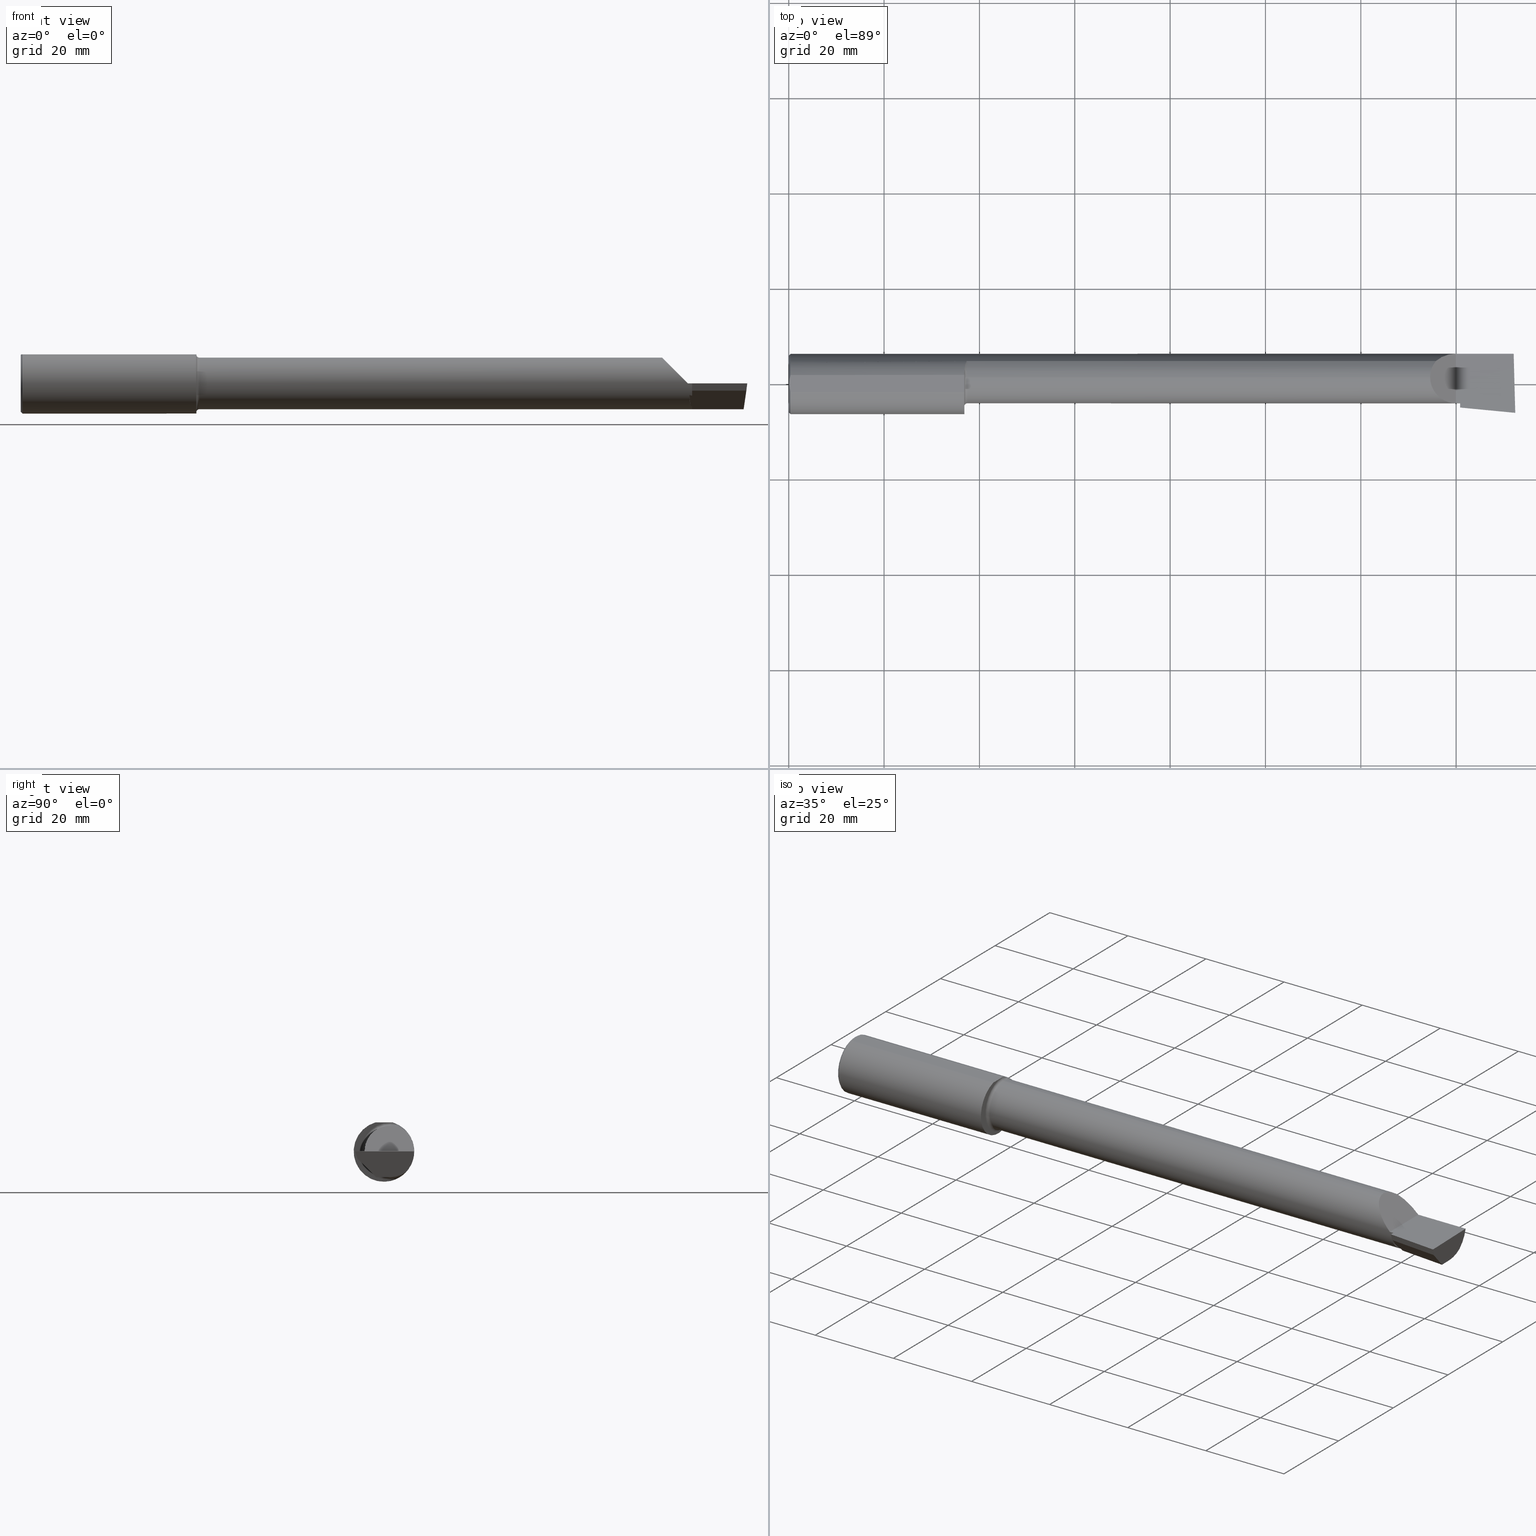
[diagram: canonical four-view strip — front | top / right | iso, engineering-drawing reading convention]
A machine part, canonical four-view strip (front | top / right | iso — engineering-drawing reading convention). The complete STEP part file that produces these views, byte-faithful:
ISO-10303-21;
HEADER;
FILE_DESCRIPTION (( 'STEP AP203' ),
    '1' );
FILE_NAME ('212172-LHB4904500.STEP',
    '2024-08-27T21:29:48',
    ( '' ),
    ( '' ),
    'SwSTEP 2.0',
    'SolidWorks 2024',
    '' );
FILE_SCHEMA (( 'CONFIG_CONTROL_DESIGN' ));
ENDSEC;

DATA;
#1 = CARTESIAN_POINT ( 'NONE',  ( 5.344079160038587517, 0.1868028301886762721, 0.1659208399614119367 ) ) ;
#2 = TOROIDAL_SURFACE ( 'NONE', #63, 0.2381500000000005002, 0.02499999999999993894 ) ;
#3 = ORIENTED_EDGE ( 'NONE', *, *, #547, .T. ) ;
#4 = AXIS2_PLACEMENT_3D ( 'NONE', #417, #405, #480 ) ;
#5 = ORIENTED_EDGE ( 'NONE', *, *, #326, .T. ) ;
#6 = DIRECTION ( 'NONE',  ( 0.000000000000000000, 0.000000000000000000, 1.000000000000000000 ) ) ;
#7 = EDGE_LOOP ( 'NONE', ( #683, #415, #5, #105 ) ) ;
#8 = EDGE_CURVE ( 'NONE', #594, #219, #279, .T. ) ;
#9 = ORIENTED_EDGE ( 'NONE', *, *, #551, .F. ) ;
#10 = COORDINATED_UNIVERSAL_TIME_OFFSET ( 8, 0, .BEHIND. ) ;
#11 = DIRECTION ( 'NONE',  ( 0.000000000000000000, 0.000000000000000000, -1.000000000000000000 ) ) ;
#12 = PLANE ( 'NONE',  #749 ) ;
#13 = EDGE_LOOP ( 'NONE', ( #643, #529 ) ) ;
#14 = LINE ( 'NONE', #159, #235 ) ;
#15 = VECTOR ( 'NONE', #47, 39.37007874015748143 ) ;
#16 = APPROVAL_PERSON_ORGANIZATION ( #56, #731, #227 ) ;
#17 = DIRECTION ( 'NONE',  ( 0.000000000000000000, -0.7025528302622682242, 0.7116315905652844664 ) ) ;
#18 = PRODUCT_RELATED_PRODUCT_CATEGORY ( 'detail', '', ( #758 ) ) ;
#19 = EDGE_CURVE ( 'NONE', #177, #350, #317, .T. ) ;
#20 = VERTEX_POINT ( 'NONE', #751 ) ;
#21 = FACE_OUTER_BOUND ( 'NONE', #565, .T. ) ;
#22 = FACE_OUTER_BOUND ( 'NONE', #607, .T. ) ;
#23 = CARTESIAN_POINT ( 'NONE',  ( 5.510000000000000675, -0.1601500000000002644, -1.849216666712503932E-16 ) ) ;
#24 = CARTESIAN_POINT ( 'NONE',  ( 1.475000000000000533, 0.05300000000000001238, -0.2381500000000005002 ) ) ;
#25 = AXIS2_PLACEMENT_3D ( 'NONE', #725, #422, #309 ) ;
#26 = CARTESIAN_POINT ( 'NONE',  ( 5.970126340504450013, -0.06507190623553234243, -0.2131499999999999506 ) ) ;
#27 = SHAPE_DEFINITION_REPRESENTATION ( #706, #452 ) ;
#28 = DIRECTION ( 'NONE',  ( 1.000000000000000000, 0.000000000000000000, 0.000000000000000000 ) ) ;
#29 = ADVANCED_FACE ( 'NONE', ( #222 ), #275, .F. ) ;
#30 = LINE ( 'NONE', #136, #590 ) ;
#31 = SECURITY_CLASSIFICATION_LEVEL ( 'unclassified' ) ;
#32 = ORIENTED_EDGE ( 'NONE', *, *, #160, .F. ) ;
#33 = CARTESIAN_POINT ( 'NONE',  ( 1.469285582744839669, 0.1841881072713785483, -0.1688230283719376612 ) ) ;
#34 = CARTESIAN_POINT ( 'NONE',  ( 5.968970726278977956, 0.1868028301886783815, -0.1659208399614098550 ) ) ;
#35 = ADVANCED_FACE ( 'NONE', ( #693 ), #346, .T. ) ;
#36 = VECTOR ( 'NONE', #727, 39.37007874015748143 ) ;
#37 = CARTESIAN_POINT ( 'NONE',  ( 5.540481425188587217, -0.04977693083852387235, -0.1867379188486353037 ) ) ;
#38 = ORIENTED_EDGE ( 'NONE', *, *, #470, .F. ) ;
#39 = AXIS2_PLACEMENT_3D ( 'NONE', #156, #50, #276 ) ;
#40 = APPROVAL_PERSON_ORGANIZATION ( #489, #142, #501 ) ;
#41 = CARTESIAN_POINT ( 'NONE',  ( 5.966986964385321279, 0.05211560253549542970, -0.2131499999999999784 ) ) ;
#42 = EDGE_CURVE ( 'NONE', #392, #170, #724, .T. ) ;
#43 = DIRECTION ( 'NONE',  ( 0.000000000000000000, -1.138839417068644240E-16, -1.000000000000000000 ) ) ;
#44 = ORIENTED_EDGE ( 'NONE', *, *, #481, .T. ) ;
#45 =( BOUNDED_CURVE ( )  B_SPLINE_CURVE ( 3, ( #640, #288, #528, #759 ),
 .UNSPECIFIED., .F., .T. ) 
 B_SPLINE_CURVE_WITH_KNOTS ( ( 4, 4 ),
 ( 0.8445312661599968518, 1.570796326794897002 ),
 .UNSPECIFIED. ) 
 CURVE ( )  GEOMETRIC_REPRESENTATION_ITEM ( )  RATIONAL_B_SPLINE_CURVE ( ( 1.000000000000000000, 0.9565258159410975347, 0.9565258159410975347, 1.000000000000000000 ) ) 
 REPRESENTATION_ITEM ( '' )  );
#46 = LINE ( 'NONE', #269, #340 ) ;
#47 = DIRECTION ( 'NONE',  ( 0.000000000000000000, -0.7025528302622682242, 0.7116315905652844664 ) ) ;
#48 = VERTEX_POINT ( 'NONE', #283 ) ;
#49 = LINE ( 'NONE', #148, #702 ) ;
#50 = DIRECTION ( 'NONE',  ( -1.000000000000000000, 0.000000000000000000, -0.000000000000000000 ) ) ;
#51 = EDGE_LOOP ( 'NONE', ( #296, #216, #318, #468, #169, #113 ) ) ;
#52 = VECTOR ( 'NONE', #523, 39.37007874015748143 ) ;
#53 = CARTESIAN_POINT ( 'NONE',  ( 0.004999999999999696527, 5.665694225652706815E-17, 0.2398500000000000076 ) ) ;
#54 = DIRECTION ( 'NONE',  ( 0.000000000000000000, 0.000000000000000000, 1.000000000000000000 ) ) ;
#55 = ORIENTED_EDGE ( 'NONE', *, *, #409, .T. ) ;
#56 = PERSON_AND_ORGANIZATION ( #273, #507 ) ;
#57 = FACE_OUTER_BOUND ( 'NONE', #180, .T. ) ;
#58 = EDGE_LOOP ( 'NONE', ( #290, #754, #400, #645, #366, #545 ) ) ;
#59 = ORIENTED_EDGE ( 'NONE', *, *, #421, .T. ) ;
#60 = EDGE_CURVE ( 'NONE', #85, #549, #162, .T. ) ;
#61 = CARTESIAN_POINT ( 'NONE',  ( 0.000000000000000000, 0.05299999999999998462, 0.000000000000000000 ) ) ;
#62 = APPLICATION_PROTOCOL_DEFINITION ( 'international standard', 'config_control_design', 1994, #424 ) ;
#63 = AXIS2_PLACEMENT_3D ( 'NONE', #678, #239, #141 ) ;
#64 = ADVANCED_FACE ( 'NONE', ( #484 ), #303, .F. ) ;
#65 = ORIENTED_EDGE ( 'NONE', *, *, #625, .T. ) ;
#66 = ORIENTED_EDGE ( 'NONE', *, *, #110, .F. ) ;
#67 = DIRECTION ( 'NONE',  ( 0.9927123040216839778, 0.02659410830638207074, -0.1175373763844857200 ) ) ;
#68 = ORIENTED_EDGE ( 'NONE', *, *, #187, .T. ) ;
#69 = CARTESIAN_POINT ( 'NONE',  ( 5.522499172395929357, -0.1369718963205484863, -0.09666230448512427853 ) ) ;
#70 = CYLINDRICAL_SURFACE ( 'NONE', #615, 0.2131500000000002282 ) ;
#71 = ADVANCED_FACE ( 'NONE', ( #22 ), #132, .F. ) ;
#72 = LINE ( 'NONE', #581, #437 ) ;
#73 = AXIS2_PLACEMENT_3D ( 'NONE', #135, #550, #663 ) ;
#74 = AXIS2_PLACEMENT_3D ( 'NONE', #355, #6, #291 ) ;
#75 = DIRECTION ( 'NONE',  ( 0.09140971883575738088, 0.9493262270931224212, 0.3007057995042750620 ) ) ;
#76 = EDGE_LOOP ( 'NONE', ( #635, #713, #641, #107 ) ) ;
#77 = DIRECTION ( 'NONE',  ( 1.000000000000000000, 0.000000000000000000, 0.000000000000000000 ) ) ;
#78 = DIRECTION ( 'NONE',  ( 0.000000000000000000, -1.000000000000000000, 0.000000000000000000 ) ) ;
#79 = CARTESIAN_POINT ( 'NONE',  ( 5.966963271960172399, 0.05299999999999996381, -0.2131499999999999784 ) ) ;
#80 = EDGE_CURVE ( 'NONE', #549, #161, #315, .T. ) ;
#81 = CARTESIAN_POINT ( 'NONE',  ( 0.004999999999999696527, 5.665694225652706815E-17, 0.2398500000000000076 ) ) ;
#82 = APPROVAL_STATUS ( 'not_yet_approved' ) ;
#83 = FACE_OUTER_BOUND ( 'NONE', #697, .T. ) ;
#84 = CARTESIAN_POINT ( 'NONE',  ( 1.450000000000000622, 0.08036415094339396936, 0.2365726648265757681 ) ) ;
#85 = VERTEX_POINT ( 'NONE', #26 ) ;
#86 = DIRECTION ( 'NONE',  ( -0.06717917588521546413, -0.6976824170844042605, 0.7132504491541850067 ) ) ;
#87 = CARTESIAN_POINT ( 'NONE',  ( 0.000000000000000000, 0.05299999999999998462, 0.000000000000000000 ) ) ;
#88 = DIRECTION ( 'NONE',  ( -0.09584575252022363434, -0.9953961983671787417, 0.000000000000000000 ) ) ;
#89 = EDGE_CURVE ( 'NONE', #429, #444, #293, .T. ) ;
#90 = DIRECTION ( 'NONE',  ( -1.000000000000000000, -0.000000000000000000, -0.000000000000000000 ) ) ;
#91 = CC_DESIGN_APPROVAL ( #420, ( #606 ) ) ;
#92 = CARTESIAN_POINT ( 'NONE',  ( 0.000000000000000000, 2.967931517733608178E-17, 0.2348499999999996424 ) ) ;
#93 = PLANE ( 'NONE',  #278 ) ;
#94 = CARTESIAN_POINT ( 'NONE',  ( 0.01180609504125302439, -0.05857511741890349816, 0.2398500000000000354 ) ) ;
#95 = LINE ( 'NONE', #209, #52 ) ;
#96 = ORIENTED_EDGE ( 'NONE', *, *, #218, .T. ) ;
#97 = CARTESIAN_POINT ( 'NONE',  ( 5.519046046773247838, -0.1728339770796961383, -0.06000000000000024064 ) ) ;
#98 = EDGE_CURVE ( 'NONE', #219, #652, #511, .T. ) ;
#99 = DIRECTION ( 'NONE',  ( 1.000000000000000000, 0.000000000000000000, 0.000000000000000000 ) ) ;
#100 = ORIENTED_EDGE ( 'NONE', *, *, #155, .F. ) ;
#101 = VERTEX_POINT ( 'NONE', #499 ) ;
#102 = ORIENTED_EDGE ( 'NONE', *, *, #98, .T. ) ;
#103 = CARTESIAN_POINT ( 'NONE',  ( 1.469294329172793789, 0.1841965204963163516, 0.1688138510234162559 ) ) ;
#104 = ORIENTED_EDGE ( 'NONE', *, *, #655, .F. ) ;
#105 = ORIENTED_EDGE ( 'NONE', *, *, #120, .F. ) ;
#106 = APPROVAL_DATE_TIME ( #585, #420 ) ;
#107 = ORIENTED_EDGE ( 'NONE', *, *, #618, .T. ) ;
#108 = CARTESIAN_POINT ( 'NONE',  ( 5.510000000000000675, -0.1601500000000002644, -1.849216666712503932E-16 ) ) ;
#109 = VERTEX_POINT ( 'NONE', #657 ) ;
#110 = EDGE_CURVE ( 'NONE', #268, #224, #719, .T. ) ;
#111 = EDGE_CURVE ( 'NONE', #411, #311, #248, .T. ) ;
#112 = PERSON_AND_ORGANIZATION_ROLE ( 'design_owner' ) ;
#113 = ORIENTED_EDGE ( 'NONE', *, *, #687, .T. ) ;
#114 = AXIS2_PLACEMENT_3D ( 'NONE', #196, #743, #88 ) ;
#115 =( CONVERSION_BASED_UNIT ( 'INCH', #648 ) LENGTH_UNIT ( ) NAMED_UNIT ( #669 ) );
#116 = ORIENTED_EDGE ( 'NONE', *, *, #684, .T. ) ;
#117 = CARTESIAN_POINT ( 'NONE',  ( 1.475000000000000533, 0.05299999999999998462, 0.2381500000000005002 ) ) ;
#118 = APPROVAL_STATUS ( 'not_yet_approved' ) ;
#119 = ORIENTED_EDGE ( 'NONE', *, *, #240, .T. ) ;
#120 = EDGE_CURVE ( 'NONE', #411, #101, #746, .T. ) ;
#121 = CARTESIAN_POINT ( 'NONE',  ( 1.450000000000000622, 0.08036415094339396936, -0.2365726648265757681 ) ) ;
#122 = ORIENTED_EDGE ( 'NONE', *, *, #232, .F. ) ;
#123 = CARTESIAN_POINT ( 'NONE',  ( 5.385139620819824557, -0.1601500000000002644, 0.1248603791801748963 ) ) ;
#124 = CC_DESIGN_DATE_AND_TIME_ASSIGNMENT ( #535, #399, ( #432 ) ) ;
#125 = CARTESIAN_POINT ( 'NONE',  ( 0.000000000000000000, 0.05299999999999998462, 0.000000000000000000 ) ) ;
#126 = DATE_AND_TIME ( #316, #467 ) ;
#127 = LINE ( 'NONE', #198, #700 ) ;
#128 = VECTOR ( 'NONE', #608, 39.37007874015748854 ) ;
#129 = CC_DESIGN_APPROVAL ( #142, ( #262 ) ) ;
#130 = CARTESIAN_POINT ( 'NONE',  ( 0.004999999999999972349, 0.01185123536186991414, 0.2398500000000000631 ) ) ;
#131 = ORIENTED_EDGE ( 'NONE', *, *, #625, .F. ) ;
#132 = PLANE ( 'NONE',  #304 ) ;
#133 = PERSON_AND_ORGANIZATION ( #273, #507 ) ;
#134 = ORIENTED_EDGE ( 'NONE', *, *, #229, .T. ) ;
#135 = CARTESIAN_POINT ( 'NONE',  ( 5.510000000000000675, -0.2500000000000000555, -1.849216666712503932E-16 ) ) ;
#136 = CARTESIAN_POINT ( 'NONE',  ( 0.01499999999999998904, 0.000000000000000000, -0.2498499999999999888 ) ) ;
#137 = CARTESIAN_POINT ( 'NONE',  ( 1.465875558094660303, 0.1799506819598015173, -0.1733486322212205444 ) ) ;
#138 = CIRCLE ( 'NONE', #676, 0.2348499999999996424 ) ;
#139 = CARTESIAN_POINT ( 'NONE',  ( 5.544999999999999929, -0.1753330585328635449, -0.06000000000000024064 ) ) ;
#140 = TOROIDAL_SURFACE ( 'NONE', #373, 0.2381500000000005002, 0.02499999999999993894 ) ;
#141 = DIRECTION ( 'NONE',  ( 0.000000000000000000, 0.000000000000000000, 1.000000000000000000 ) ) ;
#142 = APPROVAL ( #82, 'UNSPECIFIED' ) ;
#143 = EDGE_CURVE ( 'NONE', #20, #411, #328, .T. ) ;
#144 = PLANE ( 'NONE',  #448 ) ;
#145 = DIRECTION ( 'NONE',  ( -1.000000000000000000, -0.000000000000000000, -0.000000000000000000 ) ) ;
#146 = DIRECTION ( 'NONE',  ( 0.000000000000000000, 0.000000000000000000, 1.000000000000000000 ) ) ;
#147 = ORIENTED_EDGE ( 'NONE', *, *, #326, .F. ) ;
#148 = CARTESIAN_POINT ( 'NONE',  ( 6.001130543297605868, -0.2382588589380725819, -2.391615553386899761E-16 ) ) ;
#149 = CIRCLE ( 'NONE', #589, 0.2131499999999999784 ) ;
#150 = CARTESIAN_POINT ( 'NONE',  ( 1.452700393434439796, 0.1312406203802464477, 0.2128933010837863737 ) ) ;
#151 = CIRCLE ( 'NONE', #223, 0.02499999999999993894 ) ;
#152 = CARTESIAN_POINT ( 'NONE',  ( 0.01499999999999965423, -0.06997856814768402267, 0.2398500000000000076 ) ) ;
#153 = CARTESIAN_POINT ( 'NONE',  ( 5.296849999999997394, -0.07186037918017493253, 0.2131500000000002004 ) ) ;
#154 = CARTESIAN_POINT ( 'NONE',  ( 5.524413082451228085, -0.1170951804205968561, -0.1357263163794374394 ) ) ;
#155 = EDGE_CURVE ( 'NONE', #350, #601, #478, .T. ) ;
#156 = CARTESIAN_POINT ( 'NONE',  ( 1.450000000000000622, -0.1851500000000005086, 0.000000000000000000 ) ) ;
#157 = DIRECTION ( 'NONE',  ( -1.000000000000000000, -0.000000000000000000, -0.000000000000000000 ) ) ;
#158 = CARTESIAN_POINT ( 'NONE',  ( 0.009274236576542723223, -0.04692405468904862348, 0.2398500000000000354 ) ) ;
#159 = CARTESIAN_POINT ( 'NONE',  ( 3.510000000000000675, 0.1868028301886783815, -0.1659208399614098550 ) ) ;
#160 = EDGE_CURVE ( 'NONE', #572, #225, #242, .T. ) ;
#161 = VERTEX_POINT ( 'NONE', #661 ) ;
#162 = LINE ( 'NONE', #398, #714 ) ;
#163 = CIRCLE ( 'NONE', #382, 0.2498499999999999888 ) ;
#164 = APPROVAL_PERSON_ORGANIZATION ( #644, #420, #351 ) ;
#165 = APPROVAL_DATE_TIME ( #472, #731 ) ;
#166 = LOCAL_TIME ( 14, 29, 48.00000000000000000, #531 ) ;
#167 = VERTEX_POINT ( 'NONE', #188 ) ;
#168 = CARTESIAN_POINT ( 'NONE',  ( 1.470147539572908890, 0.1849815983377210704, 0.1679517088135094594 ) ) ;
#169 = ORIENTED_EDGE ( 'NONE', *, *, #110, .T. ) ;
#170 = VERTEX_POINT ( 'NONE', #609 ) ;
#171 = ORIENTED_EDGE ( 'NONE', *, *, #89, .T. ) ;
#172 = VERTEX_POINT ( 'NONE', #543 ) ;
#173 = EDGE_LOOP ( 'NONE', ( #712, #583, #264, #460 ) ) ;
#174 = FACE_OUTER_BOUND ( 'NONE', #58, .T. ) ;
#175 = VERTEX_POINT ( 'NONE', #23 ) ;
#176 = B_SPLINE_CURVE_WITH_KNOTS ( 'NONE', 3,
 ( #152, #94, #158, #324, #573, #53 ),
 .UNSPECIFIED., .F., .F.,
 ( 4, 2, 4 ),
 ( 0.002856522843320430643, 0.003750867165537647135, 0.004645211487754864060 ),
 .UNSPECIFIED. ) ;
#177 = VERTEX_POINT ( 'NONE', #121 ) ;
#178 = PERSON_AND_ORGANIZATION ( #273, #507 ) ;
#179 = ADVANCED_FACE ( 'NONE', ( #599 ), #70, .T. ) ;
#180 = EDGE_LOOP ( 'NONE', ( #524, #344, #659, #407, #100, #482 ) ) ;
#181 = CARTESIAN_POINT ( 'NONE',  ( 5.965646124279056828, 0.1021668565906563991, -0.2131500000000002837 ) ) ;
#182 = EDGE_LOOP ( 'NONE', ( #257, #55, #541, #341, #530, #490, #228, #534, #647, #597, #134, #44, #59 ) ) ;
#183 = DIRECTION ( 'NONE',  ( 0.000000000000000000, 0.000000000000000000, 1.000000000000000000 ) ) ;
#184 = CARTESIAN_POINT ( 'NONE',  ( 0.01181966702888973680, 0.05862357455657494359, 0.2398500000000000354 ) ) ;
#185 = ORIENTED_EDGE ( 'NONE', *, *, #618, .F. ) ;
#186 = DIRECTION ( 'NONE',  ( 0.000000000000000000, 0.000000000000000000, -1.000000000000000000 ) ) ;
#187 = EDGE_CURVE ( 'NONE', #527, #594, #698, .T. ) ;
#188 = CARTESIAN_POINT ( 'NONE',  ( 5.544999999999999929, 0.05299999999999996381, -0.2131499999999999784 ) ) ;
#189 = DIRECTION ( 'NONE',  ( 0.02677973311239231768, -0.9996413586354002678, -2.916664445122107707E-18 ) ) ;
#190 = CIRCLE ( 'NONE', #624, 0.2381500000000005002 ) ;
#191 = CC_DESIGN_SECURITY_CLASSIFICATION ( #262, ( #606 ) ) ;
#192 = ADVANCED_FACE ( 'NONE', ( #548 ), #247, .F. ) ;
#193 = DIRECTION ( 'NONE',  ( 0.000000000000000000, 1.000000000000000000, -1.138839417068644240E-16 ) ) ;
#194 = DIRECTION ( 'NONE',  ( 1.000000000000000000, 0.000000000000000000, 0.000000000000000000 ) ) ;
#195 =( BOUNDED_CURVE ( )  B_SPLINE_CURVE ( 3, ( #682, #37, #671, #735 ),
 .UNSPECIFIED., .F., .T. ) 
 B_SPLINE_CURVE_WITH_KNOTS ( ( 4, 4 ),
 ( 3.425081864342414129, 3.440661644967338617 ),
 .UNSPECIFIED. ) 
 CURVE ( )  GEOMETRIC_REPRESENTATION_ITEM ( )  RATIONAL_B_SPLINE_CURVE ( ( 1.000000000000000000, 0.9999797726385939445, 0.9999797726385939445, 1.000000000000000000 ) ) 
 REPRESENTATION_ITEM ( '' )  );
#196 = CARTESIAN_POINT ( 'NONE',  ( 5.540709139270312278, 0.05214584048607600469, -0.2900000000000012568 ) ) ;
#197 = MANIFOLD_SOLID_BREP ( 'Extrude7', #688 ) ;
#198 = CARTESIAN_POINT ( 'NONE',  ( 5.519046046773247838, -0.1728339770796961383, -0.06000000000000024064 ) ) ;
#199 = AXIS2_PLACEMENT_3D ( 'NONE', #632, #336, #520 ) ;
#200 = CARTESIAN_POINT ( 'NONE',  ( 5.544999999999999929, -0.2043384830701200916, 0.000000000000000000 ) ) ;
#201 = ORIENTED_EDGE ( 'NONE', *, *, #610, .F. ) ;
#202 = VECTOR ( 'NONE', #506, 39.37007874015748143 ) ;
#203 = DIRECTION ( 'NONE',  ( 0.000000000000000000, -1.000000000000000000, 2.565624566557734573E-16 ) ) ;
#204 = LINE ( 'NONE', #440, #494 ) ;
#205 = DIRECTION ( 'NONE',  ( 0.000000000000000000, -0.7025528302622682242, 0.7116315905652844664 ) ) ;
#206 = CARTESIAN_POINT ( 'NONE',  ( 1.451680899895054111, 0.1215019751025605416, 0.2186055937858626952 ) ) ;
#207 = EDGE_CURVE ( 'NONE', #161, #109, #195, .T. ) ;
#208 = FACE_OUTER_BOUND ( 'NONE', #466, .T. ) ;
#209 = CARTESIAN_POINT ( 'NONE',  ( 5.510000000000000675, -0.2500000000000000555, -1.849216666712503932E-16 ) ) ;
#210 = ADVANCED_FACE ( 'NONE', ( #255 ), #435, .T. ) ;
#211 = AXIS2_PLACEMENT_3D ( 'NONE', #388, #685, #744 ) ;
#212 = DIRECTION ( 'NONE',  ( 0.000000000000000000, 0.000000000000000000, 1.000000000000000000 ) ) ;
#213 = CARTESIAN_POINT ( 'NONE',  ( 1.467022161877250541, 0.1817412653940166101, 0.1714670312165164356 ) ) ;
#214 = EDGE_LOOP ( 'NONE', ( #586, #502, #96, #104 ) ) ;
#215 = CARTESIAN_POINT ( 'NONE',  ( 0.000000000000000000, 0.05300000000000001238, -0.2131500000000002282 ) ) ;
#216 = ORIENTED_EDGE ( 'NONE', *, *, #421, .F. ) ;
#217 = CARTESIAN_POINT ( 'NONE',  ( 5.537805100486888676, -0.1353538176560926676, -0.09979413120599980869 ) ) ;
#218 = EDGE_CURVE ( 'NONE', #549, #167, #379, .T. ) ;
#219 = VERTEX_POINT ( 'NONE', #568 ) ;
#220 = CARTESIAN_POINT ( 'NONE',  ( 0.01499999999999998904, 0.000000000000000000, -0.2498499999999999888 ) ) ;
#221 = VERTEX_POINT ( 'NONE', #139 ) ;
#222 = FACE_OUTER_BOUND ( 'NONE', #76, .T. ) ;
#223 = AXIS2_PLACEMENT_3D ( 'NONE', #24, #250, #212 ) ;
#224 = VERTEX_POINT ( 'NONE', #621 ) ;
#225 = VERTEX_POINT ( 'NONE', #34 ) ;
#226 = ORIENTED_EDGE ( 'NONE', *, *, #305, .F. ) ;
#227 = APPROVAL_ROLE ( '' ) ;
#228 = ORIENTED_EDGE ( 'NONE', *, *, #547, .F. ) ;
#229 = EDGE_CURVE ( 'NONE', #670, #750, #204, .T. ) ;
#230 = CALENDAR_DATE ( 2024, 27, 8 ) ;
#231 = DIRECTION ( 'NONE',  ( -1.000000000000000000, -0.000000000000000000, -0.000000000000000000 ) ) ;
#232 = EDGE_CURVE ( 'NONE', #170, #221, #627, .T. ) ;
#233 = AXIS2_PLACEMENT_3D ( 'NONE', #587, #157, #578 ) ;
#234 = FACE_OUTER_BOUND ( 'NONE', #182, .T. ) ;
#235 = VECTOR ( 'NONE', #602, 39.37007874015748143 ) ;
#236 = DIRECTION ( 'NONE',  ( -1.000000000000000000, -0.000000000000000000, -0.000000000000000000 ) ) ;
#237 = VECTOR ( 'NONE', #145, 39.37007874015748143 ) ;
#238 = CARTESIAN_POINT ( 'NONE',  ( 0.005899890343961516036, 0.02378560009989256346, 0.2398500000000000354 ) ) ;
#239 = DIRECTION ( 'NONE',  ( -1.000000000000000000, -0.000000000000000000, -0.000000000000000000 ) ) ;
#240 = EDGE_CURVE ( 'NONE', #170, #268, #149, .T. ) ;
#241 = DIRECTION ( 'NONE',  ( -1.000000000000000000, -0.000000000000000000, -0.000000000000000000 ) ) ;
#242 =( BOUNDED_CURVE ( )  B_SPLINE_CURVE ( 3, ( #368, #181, #428, #416 ),
 .UNSPECIFIED., .F., .F. ) 
 B_SPLINE_CURVE_WITH_KNOTS ( ( 4, 4 ),
 ( 6.060671081087573242, 6.739317872789805541 ),
 .UNSPECIFIED. ) 
 CURVE ( )  GEOMETRIC_REPRESENTATION_ITEM ( )  RATIONAL_B_SPLINE_CURVE ( ( 1.000000000000000000, 0.9619867256453030757, 0.9619867256453030757, 1.000000000000000000 ) ) 
 REPRESENTATION_ITEM ( '' )  );
#243 = ORIENTED_EDGE ( 'NONE', *, *, #642, .F. ) ;
#244 = PLANE ( 'NONE',  #495 ) ;
#245 = CC_DESIGN_DATE_AND_TIME_ASSIGNMENT ( #554, #256, ( #262 ) ) ;
#246 = ADVANCED_FACE ( 'NONE', ( #431 ), #144, .F. ) ;
#247 = PLANE ( 'NONE',  #477 ) ;
#248 = CIRCLE ( 'NONE', #25, 0.2381500000000005002 ) ;
#249 = ORIENTED_EDGE ( 'NONE', *, *, #673, .F. ) ;
#250 = DIRECTION ( 'NONE',  ( -0.000000000000000000, 1.000000000000000000, 1.224646799147353207E-16 ) ) ;
#251 = CIRCLE ( 'NONE', #747, 0.2498499999999999888 ) ;
#252 = VECTOR ( 'NONE', #522, 39.37007874015748854 ) ;
#253 = CARTESIAN_POINT ( 'NONE',  ( 5.544999999999999929, -0.2500000000000000555, -1.887870261551340527E-16 ) ) ;
#254 = CARTESIAN_POINT ( 'NONE',  ( 0.01499999999999998904, 0.000000000000000000, 0.000000000000000000 ) ) ;
#255 = FACE_OUTER_BOUND ( 'NONE', #536, .T. ) ;
#256 = DATE_TIME_ROLE ( 'classification_date' ) ;
#257 = ORIENTED_EDGE ( 'NONE', *, *, #465, .F. ) ;
#258 = LINE ( 'NONE', #436, #128 ) ;
#259 = ORIENTED_EDGE ( 'NONE', *, *, #567, .F. ) ;
#260 = LINE ( 'NONE', #689, #202 ) ;
#261 = AXIS2_PLACEMENT_3D ( 'NONE', #319, #28, #186 ) ;
#262 = SECURITY_CLASSIFICATION ( '', '', #31 ) ;
#263 = DIRECTION ( 'NONE',  ( 0.7071067811865389130, 0.000000000000000000, -0.7071067811865560104 ) ) ;
#264 = ORIENTED_EDGE ( 'NONE', *, *, #377, .T. ) ;
#265 = CARTESIAN_POINT ( 'NONE',  ( 5.986926801651457630, 0.2498499999999998222, -2.376133405444120600E-16 ) ) ;
#266 = ADVANCED_FACE ( 'NONE', ( #561 ), #504, .F. ) ;
#267 = DIRECTION ( 'NONE',  ( 0.000000000000000000, 1.000000000000000000, -1.138839417068644240E-16 ) ) ;
#268 = VERTEX_POINT ( 'NONE', #500 ) ;
#269 = CARTESIAN_POINT ( 'NONE',  ( 5.984159346317754036, -0.1618214701366293695, -0.1165188729350217500 ) ) ;
#270 = DIRECTION ( 'NONE',  ( -1.000000000000000000, -0.000000000000000000, -0.000000000000000000 ) ) ;
#271 = VERTEX_POINT ( 'NONE', #374 ) ;
#272 = CARTESIAN_POINT ( 'NONE',  ( 5.544999999999999929, -0.1952503421026561548, 0.002878732955684709487 ) ) ;
#273 = PERSON ( 'UNSPECIFIED', 'UNSPECIFIED', 'UNSPECIFIED', ('UNSPECIFIED'), ('UNSPECIFIED'), ('UNSPECIFIED') ) ;
#274 =( BOUNDED_CURVE ( )  B_SPLINE_CURVE ( 3, ( #646, #153, #123, #108 ),
 .UNSPECIFIED., .F., .T. ) 
 B_SPLINE_CURVE_WITH_KNOTS ( ( 4, 4 ),
 ( 0.000000000000000000, 1.570796326794896780 ),
 .UNSPECIFIED. ) 
 CURVE ( )  GEOMETRIC_REPRESENTATION_ITEM ( )  RATIONAL_B_SPLINE_CURVE ( ( 1.000000000000000000, 0.8047378541243649375, 0.8047378541243649375, 1.000000000000000000 ) ) 
 REPRESENTATION_ITEM ( '' )  );
#275 = TOROIDAL_SURFACE ( 'NONE', #233, 0.2381500000000005002, 0.02499999999999993894 ) ;
#276 = DIRECTION ( 'NONE',  ( -0.000000000000000000, 0.000000000000000000, 1.000000000000000000 ) ) ;
#277 = EDGE_LOOP ( 'NONE', ( #402, #289, #497 ) ) ;
#278 = AXIS2_PLACEMENT_3D ( 'NONE', #564, #43, #267 ) ;
#279 = LINE ( 'NONE', #705, #574 ) ;
#280 = CARTESIAN_POINT ( 'NONE',  ( 5.344079160038587517, 0.1868028301886762721, 0.1659208399614119367 ) ) ;
#281 = DIRECTION ( 'NONE',  ( 0.000000000000000000, 0.000000000000000000, 1.000000000000000000 ) ) ;
#282 = ORIENTED_EDGE ( 'NONE', *, *, #229, .F. ) ;
#283 = CARTESIAN_POINT ( 'NONE',  ( 1.475000000000000533, 0.1868028301886770215, -0.1659208399614113261 ) ) ;
#284 = CC_DESIGN_PERSON_AND_ORGANIZATION_ASSIGNMENT ( #178, #414, ( #606 ) ) ;
#285 = EDGE_CURVE ( 'NONE', #527, #429, #30, .T. ) ;
#286 = COORDINATED_UNIVERSAL_TIME_OFFSET ( 8, 0, .BEHIND. ) ;
#287 = ORIENTED_EDGE ( 'NONE', *, *, #552, .F. ) ;
#288 = CARTESIAN_POINT ( 'NONE',  ( 5.390325100969864280, 0.2278791102234763999, 0.1196748990301354371 ) ) ;
#289 = ORIENTED_EDGE ( 'NONE', *, *, #80, .T. ) ;
#290 = ORIENTED_EDGE ( 'NONE', *, *, #465, .T. ) ;
#291 = DIRECTION ( 'NONE',  ( 1.000000000000000000, 0.000000000000000000, 0.000000000000000000 ) ) ;
#292 = EDGE_LOOP ( 'NONE', ( #226, #201, #282, #249 ) ) ;
#293 = CIRCLE ( 'NONE', #532, 0.2498499999999999888 ) ;
#294 = CARTESIAN_POINT ( 'NONE',  ( 5.522499172395929357, -0.1369718963205484863, -0.09666230448512427853 ) ) ;
#295 = VECTOR ( 'NONE', #558, 39.37007874015748143 ) ;
#296 = ORIENTED_EDGE ( 'NONE', *, *, #492, .F. ) ;
#297 = EDGE_CURVE ( 'NONE', #601, #311, #251, .T. ) ;
#298 = ORIENTED_EDGE ( 'NONE', *, *, #207, .F. ) ;
#299 = CYLINDRICAL_SURFACE ( 'NONE', #4, 0.2498499999999999888 ) ;
#300 = ORIENTED_EDGE ( 'NONE', *, *, #232, .T. ) ;
#301 = EDGE_LOOP ( 'NONE', ( #533, #473, #358, #662, #760, #119, #259, #352, #408, #147 ) ) ;
#302 = DIRECTION ( 'NONE',  ( 1.000000000000000000, 0.000000000000000000, 0.000000000000000000 ) ) ;
#303 = PLANE ( 'NONE',  #371 ) ;
#304 = AXIS2_PLACEMENT_3D ( 'NONE', #537, #493, #11 ) ;
#305 = EDGE_CURVE ( 'NONE', #271, #101, #370, .T. ) ;
#306 = CONICAL_SURFACE ( 'NONE', #736, 0.2498499999999999888, 0.7853981633974603804 ) ;
#307 = DIRECTION ( 'NONE',  ( -1.000000000000000000, -0.000000000000000000, -0.000000000000000000 ) ) ;
#308 = VECTOR ( 'NONE', #566, 39.37007874015748854 ) ;
#309 = DIRECTION ( 'NONE',  ( 0.000000000000000000, 0.000000000000000000, 1.000000000000000000 ) ) ;
#310 = ADVANCED_FACE ( 'NONE', ( #330 ), #93, .F. ) ;
#311 = VERTEX_POINT ( 'NONE', #510 ) ;
#312 = FACE_OUTER_BOUND ( 'NONE', #650, .T. ) ;
#313 = CARTESIAN_POINT ( 'NONE',  ( 0.000000000000000000, 0.000000000000000000, 0.000000000000000000 ) ) ;
#314 = CARTESIAN_POINT ( 'NONE',  ( 0.01499999999999998904, 0.000000000000000000, 0.000000000000000000 ) ) ;
#315 = LINE ( 'NONE', #540, #734 ) ;
#316 = CALENDAR_DATE ( 2024, 27, 8 ) ;
#317 = CIRCLE ( 'NONE', #199, 0.2498499999999999888 ) ;
#318 = ORIENTED_EDGE ( 'NONE', *, *, #439, .F. ) ;
#319 = CARTESIAN_POINT ( 'NONE',  ( 0.01499999999999998904, 0.000000000000000000, 0.000000000000000000 ) ) ;
#320 = EDGE_CURVE ( 'NONE', #311, #670, #762, .T. ) ;
#321 = CARTESIAN_POINT ( 'NONE',  ( 1.457342647456793427, 0.1582204157543801448, 0.1936739931581306640 ) ) ;
#322 = CC_DESIGN_PERSON_AND_ORGANIZATION_ASSIGNMENT ( #730, #600, ( #606 ) ) ;
#323 = CARTESIAN_POINT ( 'NONE',  ( 6.000000000000000888, -0.2500000000000000555, -2.390366994456230070E-16 ) ) ;
#324 = CARTESIAN_POINT ( 'NONE',  ( 0.005880636388018911122, -0.02358947477502554638, 0.2398499999999999799 ) ) ;
#325 = CARTESIAN_POINT ( 'NONE',  ( 0.000000000000000000, 0.05299999999999998462, 0.2131500000000002282 ) ) ;
#326 = EDGE_CURVE ( 'NONE', #476, #101, #638, .T. ) ;
#327 = CARTESIAN_POINT ( 'NONE',  ( 6.000000000000001776, -0.2381500000000003059, 4.268512490100411402E-16 ) ) ;
#328 = CIRCLE ( 'NONE', #393, 0.2381500000000005002 ) ;
#329 = VECTOR ( 'NONE', #189, 39.37007874015748854 ) ;
#330 = FACE_OUTER_BOUND ( 'NONE', #348, .T. ) ;
#331 = CARTESIAN_POINT ( 'NONE',  ( 1.475000000000000533, 0.05299999999999998462, 0.000000000000000000 ) ) ;
#332 = EDGE_CURVE ( 'NONE', #177, #20, #190, .T. ) ;
#333 = DIRECTION ( 'NONE',  ( -0.000000000000000000, 1.000000000000000000, -2.565624566557734573E-16 ) ) ;
#334 = LINE ( 'NONE', #272, #252 ) ;
#335 = PLANE ( 'NONE',  #39 ) ;
#336 = DIRECTION ( 'NONE',  ( -1.000000000000000000, -0.000000000000000000, -0.000000000000000000 ) ) ;
#337 = CARTESIAN_POINT ( 'NONE',  ( 5.296849999999999170, 0.05299999999999998462, 0.2131500000000002282 ) ) ;
#338 = CARTESIAN_POINT ( 'NONE',  ( 5.979603243914508148, 0.2498499999999999610, -0.06185424669427579819 ) ) ;
#339 = DIRECTION ( 'NONE',  ( 0.000000000000000000, 0.000000000000000000, 1.000000000000000000 ) ) ;
#340 = VECTOR ( 'NONE', #596, 39.37007874015748143 ) ;
#341 = ORIENTED_EDGE ( 'NONE', *, *, #19, .T. ) ;
#342 = ORIENTED_EDGE ( 'NONE', *, *, #584, .F. ) ;
#343 = MECHANICAL_CONTEXT ( 'NONE', #639, 'mechanical' ) ;
#344 = ORIENTED_EDGE ( 'NONE', *, *, #143, .T. ) ;
#345 = DIRECTION ( 'NONE',  ( 0.000000000000000000, 0.000000000000000000, 1.000000000000000000 ) ) ;
#346 = CYLINDRICAL_SURFACE ( 'NONE', #515, 0.2131500000000002282 ) ;
#347 = CALENDAR_DATE ( 2024, 27, 8 ) ;
#348 = EDGE_LOOP ( 'NONE', ( #761, #406, #518, #538, #131 ) ) ;
#349 = AXIS2_PLACEMENT_3D ( 'NONE', #313, #721, #666 ) ;
#350 = VERTEX_POINT ( 'NONE', #660 ) ;
#351 = APPROVAL_ROLE ( '' ) ;
#352 = ORIENTED_EDGE ( 'NONE', *, *, #377, .F. ) ;
#353 = DIRECTION ( 'NONE',  ( 0.000000000000000000, 0.000000000000000000, 1.000000000000000000 ) ) ;
#354 =( BOUNDED_CURVE ( )  B_SPLINE_CURVE ( 3, ( #389, #634, #338, #576 ),
 .UNSPECIFIED., .F., .T. ) 
 B_SPLINE_CURVE_WITH_KNOTS ( ( 4, 4 ),
 ( 0.6220170400679957412, 1.348282100702882680 ),
 .UNSPECIFIED. ) 
 CURVE ( )  GEOMETRIC_REPRESENTATION_ITEM ( )  RATIONAL_B_SPLINE_CURVE ( ( 1.000000000000000000, 0.9565258159410989780, 0.9565258159410989780, 1.000000000000000000 ) ) 
 REPRESENTATION_ITEM ( '' )  );
#355 = CARTESIAN_POINT ( 'NONE',  ( 0.000000000000000000, 0.000000000000000000, 0.000000000000000000 ) ) ;
#356 = VERTEX_POINT ( 'NONE', #630 ) ;
#357 = DIRECTION ( 'NONE',  ( -0.9953961983671787417, 0.09584575252022424496, -2.614745597736306358E-17 ) ) ;
#358 = ORIENTED_EDGE ( 'NONE', *, *, #207, .T. ) ;
#359 = CARTESIAN_POINT ( 'NONE',  ( 0.000000000000000000, -0.06997856814768378675, 0.2398499999999999244 ) ) ;
#360 = DIRECTION ( 'NONE',  ( -1.000000000000000000, -0.000000000000000000, -0.000000000000000000 ) ) ;
#361 = COORDINATED_UNIVERSAL_TIME_OFFSET ( 8, 0, .BEHIND. ) ;
#362 = LOCAL_TIME ( 14, 29, 48.00000000000000000, #658 ) ;
#363 = ORIENTED_EDGE ( 'NONE', *, *, #60, .F. ) ;
#364 = DIRECTION ( 'NONE',  ( 0.000000000000000000, 0.000000000000000000, -1.000000000000000000 ) ) ;
#365 = CARTESIAN_POINT ( 'NONE',  ( 1.450000000000000622, 0.05299999999999998462, 0.000000000000000000 ) ) ;
#366 = ORIENTED_EDGE ( 'NONE', *, *, #710, .T. ) ;
#367 = CARTESIAN_POINT ( 'NONE',  ( 1.462797058507745662, 0.1743943839926563877, -0.1789958554125722079 ) ) ;
#368 = CARTESIAN_POINT ( 'NONE',  ( 5.966963271960172399, 0.05299999999999996381, -0.2131499999999999784 ) ) ;
#369 = DIRECTION ( 'NONE',  ( 1.000000000000000000, 0.000000000000000000, 0.000000000000000000 ) ) ;
#370 = LINE ( 'NONE', #325, #295 ) ;
#371 = AXIS2_PLACEMENT_3D ( 'NONE', #553, #75, #412 ) ;
#372 = EDGE_CURVE ( 'NONE', #167, #161, #397, .T. ) ;
#373 = AXIS2_PLACEMENT_3D ( 'NONE', #331, #622, #378 ) ;
#374 = CARTESIAN_POINT ( 'NONE',  ( 5.296849999999999170, 0.05299999999999998462, 0.2131500000000002282 ) ) ;
#375 = CARTESIAN_POINT ( 'NONE',  ( 1.472232603162241027, 0.1862758070845851321, -0.1665151405181452271 ) ) ;
#376 = DIRECTION ( 'NONE',  ( -1.000000000000000000, 0.000000000000000000, 1.104388423966789920E-16 ) ) ;
#377 = EDGE_CURVE ( 'NONE', #271, #175, #274, .T. ) ;
#378 = DIRECTION ( 'NONE',  ( 0.000000000000000000, 0.000000000000000000, 1.000000000000000000 ) ) ;
#379 = LINE ( 'NONE', #686, #723 ) ;
#380 = CARTESIAN_POINT ( 'NONE',  ( 1.450000000000000622, 0.06997856814768384226, 0.2398500000000000076 ) ) ;
#381 = AXIS2_PLACEMENT_3D ( 'NONE', #87, #729, #512 ) ;
#382 = AXIS2_PLACEMENT_3D ( 'NONE', #254, #542, #728 ) ;
#383 = CC_DESIGN_APPROVAL ( #731, ( #432 ) ) ;
#384 = CARTESIAN_POINT ( 'NONE',  ( 1.455552616244823128, 0.1495611067857145482, 0.2004473332852690914 ) ) ;
#385 = DIRECTION ( 'NONE',  ( 0.06836202603457079696, 0.7099667855717585185, 0.7009092642998474565 ) ) ;
#386 = LINE ( 'NONE', #745, #616 ) ;
#387 = EDGE_LOOP ( 'NONE', ( #287, #396, #243, #463 ) ) ;
#388 = CARTESIAN_POINT ( 'NONE',  ( 1.475000000000000533, 0.05299999999999998462, 0.000000000000000000 ) ) ;
#389 = CARTESIAN_POINT ( 'NONE',  ( 5.968970726278977956, 0.1868028301886783815, -0.1659208399614098550 ) ) ;
#390 = DIRECTION ( 'NONE',  ( -1.000000000000000000, -0.000000000000000000, -0.000000000000000000 ) ) ;
#391 = CARTESIAN_POINT ( 'NONE',  ( 5.296849999999998282, 0.1021668565906554971, 0.2131500000000002837 ) ) ;
#392 = VERTEX_POINT ( 'NONE', #69 ) ;
#393 = AXIS2_PLACEMENT_3D ( 'NONE', #365, #241, #353 ) ;
#394 = CC_DESIGN_PERSON_AND_ORGANIZATION_ASSIGNMENT ( #462, #112, ( #758 ) ) ;
#395 = CARTESIAN_POINT ( 'NONE',  ( 0.000000000000000000, 0.000000000000000000, 0.000000000000000000 ) ) ;
#396 = ORIENTED_EDGE ( 'NONE', *, *, #687, .F. ) ;
#397 = CIRCLE ( 'NONE', #664, 0.2131499999999999784 ) ;
#398 = CARTESIAN_POINT ( 'NONE',  ( 5.988460977461673274, -0.06683733097719074534, -0.2131499999999999506 ) ) ;
#399 = DATE_TIME_ROLE ( 'creation_date' ) ;
#400 = ORIENTED_EDGE ( 'NONE', *, *, #552, .T. ) ;
#401 = CARTESIAN_POINT ( 'NONE',  ( 1.450000000000000622, 0.05299999999999998462, 0.000000000000000000 ) ) ;
#402 = ORIENTED_EDGE ( 'NONE', *, *, #218, .F. ) ;
#403 = ORIENTED_EDGE ( 'NONE', *, *, #240, .F. ) ;
#404 = EDGE_CURVE ( 'NONE', #652, #601, #72, .T. ) ;
#405 = DIRECTION ( 'NONE',  ( -1.000000000000000000, -0.000000000000000000, -0.000000000000000000 ) ) ;
#406 = ORIENTED_EDGE ( 'NONE', *, *, #155, .T. ) ;
#407 = ORIENTED_EDGE ( 'NONE', *, *, #297, .F. ) ;
#408 = ORIENTED_EDGE ( 'NONE', *, *, #305, .T. ) ;
#409 = EDGE_CURVE ( 'NONE', #225, #48, #14, .T. ) ;
#410 = EDGE_CURVE ( 'NONE', #350, #444, #419, .T. ) ;
#411 = VERTEX_POINT ( 'NONE', #451 ) ;
#412 = DIRECTION ( 'NONE',  ( 0.000000000000000000, -0.3019700370129929645, 0.9533174165755977647 ) ) ;
#413 = AXIS2_PLACEMENT_3D ( 'NONE', #539, #717, #345 ) ;
#414 = PERSON_AND_ORGANIZATION_ROLE ( 'creator' ) ;
#415 = ORIENTED_EDGE ( 'NONE', *, *, #579, .T. ) ;
#416 = CARTESIAN_POINT ( 'NONE',  ( 5.968970726278977956, 0.1868028301886783815, -0.1659208399614098550 ) ) ;
#417 = CARTESIAN_POINT ( 'NONE',  ( 0.000000000000000000, 0.000000000000000000, 0.000000000000000000 ) ) ;
#418 = ORIENTED_EDGE ( 'NONE', *, *, #470, .T. ) ;
#419 = LINE ( 'NONE', #359, #516 ) ;
#420 = APPROVAL ( #588, 'UNSPECIFIED' ) ;
#421 = EDGE_CURVE ( 'NONE', #172, #716, #386, .T. ) ;
#422 = DIRECTION ( 'NONE',  ( -1.000000000000000000, -0.000000000000000000, -0.000000000000000000 ) ) ;
#423 = FACE_OUTER_BOUND ( 'NONE', #173, .T. ) ;
#424 = APPLICATION_CONTEXT ( 'configuration controlled 3d designs of mechanical parts and assemblies' ) ;
#425 = CARTESIAN_POINT ( 'NONE',  ( 0.01499999999999998904, 0.000000000000000000, 0.000000000000000000 ) ) ;
#426 = VECTOR ( 'NONE', #694, 39.37007874015748143 ) ;
#427 = LINE ( 'NONE', #720, #562 ) ;
#428 = CARTESIAN_POINT ( 'NONE',  ( 5.966341717494392682, 0.1485302233682050665, -0.1967848538638763134 ) ) ;
#429 = VERTEX_POINT ( 'NONE', #220 ) ;
#430 = FACE_OUTER_BOUND ( 'NONE', #592, .T. ) ;
#431 = FACE_OUTER_BOUND ( 'NONE', #51, .T. ) ;
#432 = PRODUCT_DEFINITION ( 'UNKNOWN', '', #606, #739 ) ;
#433 = PLANE ( 'NONE',  #73 ) ;
#434 =( BOUNDED_CURVE ( )  B_SPLINE_CURVE ( 3, ( #280, #691, #391, #337 ),
 .UNSPECIFIED., .F., .F. ) 
 B_SPLINE_CURVE_WITH_KNOTS ( ( 4, 4 ),
 ( 5.604538515477368144, 6.283185307179586232 ),
 .UNSPECIFIED. ) 
 CURVE ( )  GEOMETRIC_REPRESENTATION_ITEM ( )  RATIONAL_B_SPLINE_CURVE ( ( 1.000000000000000000, 0.9619867256453047411, 0.9619867256453047411, 1.000000000000000000 ) ) 
 REPRESENTATION_ITEM ( '' )  );
#435 = CYLINDRICAL_SURFACE ( 'NONE', #381, 0.2131500000000002282 ) ;
#436 = CARTESIAN_POINT ( 'NONE',  ( 5.983858394183930507, -0.1964039090909500962, -0.1268853457175436461 ) ) ;
#437 = VECTOR ( 'NONE', #99, 39.37007874015748143 ) ;
#438 = LOCAL_TIME ( 14, 29, 48.00000000000000000, #286 ) ;
#439 = EDGE_CURVE ( 'NONE', #175, #172, #95, .T. ) ;
#440 = CARTESIAN_POINT ( 'NONE',  ( 3.510000000000000675, 0.1868028301886783815, 0.1659208399614098550 ) ) ;
#441 = LINE ( 'NONE', #215, #237 ) ;
#442 = ADVANCED_FACE ( 'NONE', ( #57 ), #335, .F. ) ;
#443 = DIRECTION ( 'NONE',  ( -1.104388423966789920E-16, 0.000000000000000000, -1.000000000000000000 ) ) ;
#444 = VERTEX_POINT ( 'NONE', #517 ) ;
#445 = CARTESIAN_POINT ( 'NONE',  ( 5.527364221733841454, -0.08644642713185425598, -0.1670589636038934400 ) ) ;
#446 = CARTESIAN_POINT ( 'NONE',  ( 5.544999999999999929, -0.2196470971618798007, -0.01511331185988424967 ) ) ;
#447 = CARTESIAN_POINT ( 'NONE',  ( 1.475000000000000533, 0.1868028301886768827, 0.1659208399614114093 ) ) ;
#448 = AXIS2_PLACEMENT_3D ( 'NONE', #323, #443, #376 ) ;
#449 = CIRCLE ( 'NONE', #479, 0.2131500000000005057 ) ;
#450 = CIRCLE ( 'NONE', #211, 0.2131500000000005057 ) ;
#451 = CARTESIAN_POINT ( 'NONE',  ( 1.450000000000000622, 0.05299999999999998462, 0.2381500000000005002 ) ) ;
#452 = ADVANCED_BREP_SHAPE_REPRESENTATION ( '212172-LHB4904500', ( #197, #74 ), #591 ) ;
#453 = CARTESIAN_POINT ( 'NONE',  ( 5.531082512009718677, -0.04783050615766583358, -0.1877927888072090101 ) ) ;
#454 = DIRECTION ( 'NONE',  ( -1.000000000000000000, -0.000000000000000000, -0.000000000000000000 ) ) ;
#455 = ORIENTED_EDGE ( 'NONE', *, *, #655, .T. ) ;
#456 = ORIENTED_EDGE ( 'NONE', *, *, #187, .F. ) ;
#457 = DIRECTION ( 'NONE',  ( -1.000000000000000000, -0.000000000000000000, -0.000000000000000000 ) ) ;
#458 = CC_DESIGN_PERSON_AND_ORGANIZATION_ASSIGNMENT ( #711, #651, ( #432 ) ) ;
#459 = LINE ( 'NONE', #464, #329 ) ;
#460 = ORIENTED_EDGE ( 'NONE', *, *, #439, .T. ) ;
#461 = CARTESIAN_POINT ( 'NONE',  ( 5.544999999999999929, -0.1345157694617467592, -0.1013447517297718370 ) ) ;
#462 = PERSON_AND_ORGANIZATION ( #273, #507 ) ;
#463 = ORIENTED_EDGE ( 'NONE', *, *, #584, .T. ) ;
#464 = CARTESIAN_POINT ( 'NONE',  ( 6.000317226026190554, -0.2499915017238489856, -2.390717335207336421E-16 ) ) ;
#465 = EDGE_CURVE ( 'NONE', #225, #716, #354, .T. ) ;
#466 = EDGE_LOOP ( 'NONE', ( #469, #342, #122, #636, #9, #298, #701, #363 ) ) ;
#467 = LOCAL_TIME ( 14, 29, 48.00000000000000000, #361 ) ;
#468 = ORIENTED_EDGE ( 'NONE', *, *, #567, .T. ) ;
#469 = ORIENTED_EDGE ( 'NONE', *, *, #732, .F. ) ;
#470 = EDGE_CURVE ( 'NONE', #594, #527, #138, .T. ) ;
#471 = ORIENTED_EDGE ( 'NONE', *, *, #409, .F. ) ;
#472 = DATE_AND_TIME ( #699, #438 ) ;
#473 = ORIENTED_EDGE ( 'NONE', *, *, #372, .T. ) ;
#474 = DIRECTION ( 'NONE',  ( 0.7071067811865389130, 8.659560562355037629E-17, 0.7071067811865560104 ) ) ;
#475 = DIRECTION ( 'NONE',  ( -0.1175789623991730370, 0.000000000000000000, -0.9930635365378861490 ) ) ;
#476 = VERTEX_POINT ( 'NONE', #753 ) ;
#477 = AXIS2_PLACEMENT_3D ( 'NONE', #200, #508, #740 ) ;
#478 = LINE ( 'NONE', #715, #505 ) ;
#479 = AXIS2_PLACEMENT_3D ( 'NONE', #633, #457, #569 ) ;
#480 = DIRECTION ( 'NONE',  ( 0.000000000000000000, 0.000000000000000000, 1.000000000000000000 ) ) ;
#481 = EDGE_CURVE ( 'NONE', #750, #172, #45, .T. ) ;
#482 = ORIENTED_EDGE ( 'NONE', *, *, #19, .F. ) ;
#483 = CARTESIAN_POINT ( 'NONE',  ( 1.462765002235294043, 0.1743275501927384064, 0.1790622127600498825 ) ) ;
#484 = FACE_OUTER_BOUND ( 'NONE', #387, .T. ) ;
#485 = B_SPLINE_CURVE_WITH_KNOTS ( 'NONE', 3,
 ( #503, #555, #375, #617, #33, #733, #137, #367, #486, #557, #726, #611, #613, #620 ),
 .UNSPECIFIED., .F., .F.,
 ( 4, 2, 2, 2, 2, 2, 4 ),
 ( 1.967619685288262155E-07, 0.0001090840123077873724, 0.0002179712626470459212, 0.0004357457633255741591, 0.0008712947646826288460, 0.001742392767396743749, 0.003484588772824970086 ),
 .UNSPECIFIED. ) ;
#486 = CARTESIAN_POINT ( 'NONE',  ( 1.461285743882608346, 0.1704402150608090860, -0.1827701868778719430 ) ) ;
#487 = UNCERTAINTY_MEASURE_WITH_UNIT (LENGTH_MEASURE( 1.000000000000000082E-05 ), #115, 'distance_accuracy_value', 'NONE');
#488 = DIRECTION ( 'NONE',  ( 0.000000000000000000, 0.000000000000000000, 1.000000000000000000 ) ) ;
#489 = PERSON_AND_ORGANIZATION ( #273, #507 ) ;
#490 = ORIENTED_EDGE ( 'NONE', *, *, #89, .F. ) ;
#491 = CARTESIAN_POINT ( 'NONE',  ( 5.544999999999999929, -0.2043384830701200916, 0.000000000000000000 ) ) ;
#492 = EDGE_CURVE ( 'NONE', #716, #704, #459, .T. ) ;
#493 = DIRECTION ( 'NONE',  ( 1.000000000000000000, 0.000000000000000000, 0.000000000000000000 ) ) ;
#494 = VECTOR ( 'NONE', #194, 39.37007874015748143 ) ;
#495 = AXIS2_PLACEMENT_3D ( 'NONE', #491, #722, #667 ) ;
#496 = APPROVAL_DATE_TIME ( #126, #142 ) ;
#497 = ORIENTED_EDGE ( 'NONE', *, *, #372, .F. ) ;
#498 = ADVANCED_FACE ( 'NONE', ( #430 ), #306, .T. ) ;
#499 = CARTESIAN_POINT ( 'NONE',  ( 1.475000000000000533, 0.05299999999999998462, 0.2131500000000005057 ) ) ;
#500 = CARTESIAN_POINT ( 'NONE',  ( 5.544999999999999929, -0.1601499999999999868, 4.235963549344505753E-16 ) ) ;
#501 = APPROVAL_ROLE ( '' ) ;
#502 = ORIENTED_EDGE ( 'NONE', *, *, #60, .T. ) ;
#503 = CARTESIAN_POINT ( 'NONE',  ( 1.475000000000000533, 0.1868028301886770215, -0.1659208399614113261 ) ) ;
#504 = PLANE ( 'NONE',  #114 ) ;
#505 = VECTOR ( 'NONE', #193, 39.37007874015748143 ) ;
#506 = DIRECTION ( 'NONE',  ( -1.000000000000000000, -0.000000000000000000, -0.000000000000000000 ) ) ;
#507 = ORGANIZATION ( 'UNSPECIFIED', 'UNSPECIFIED', '' ) ;
#508 = DIRECTION ( 'NONE',  ( 1.000000000000000000, 0.000000000000000000, 0.000000000000000000 ) ) ;
#509 = PLANE ( 'NONE',  #677 ) ;
#510 = CARTESIAN_POINT ( 'NONE',  ( 1.450000000000000622, 0.08036415094339396936, 0.2365726648265757681 ) ) ;
#511 = B_SPLINE_CURVE_WITH_KNOTS ( 'NONE', 3,
 ( #81, #130, #238, #604, #184, #653 ),
 .UNSPECIFIED., .F., .F.,
 ( 4, 2, 4 ),
 ( 0.004645211487754864060, 0.005540449869823556306, 0.006435688251892248551 ),
 .UNSPECIFIED. ) ;
#512 = DIRECTION ( 'NONE',  ( 0.000000000000000000, 0.000000000000000000, 1.000000000000000000 ) ) ;
#513 = ADVANCED_FACE ( 'NONE', ( #423 ), #433, .F. ) ;
#514 = CARTESIAN_POINT ( 'NONE',  ( 6.000000000000000888, 0.05299999999999996381, -0.2131499999999999784 ) ) ;
#515 = AXIS2_PLACEMENT_3D ( 'NONE', #61, #390, #339 ) ;
#516 = VECTOR ( 'NONE', #703, 39.37007874015748143 ) ;
#517 = CARTESIAN_POINT ( 'NONE',  ( 0.01499999999999965423, -0.06997856814768402267, 0.2398500000000000076 ) ) ;
#518 = ORIENTED_EDGE ( 'NONE', *, *, #404, .F. ) ;
#519 = EDGE_CURVE ( 'NONE', #48, #177, #485, .T. ) ;
#520 = DIRECTION ( 'NONE',  ( 0.000000000000000000, 0.000000000000000000, 1.000000000000000000 ) ) ;
#521 =( BOUNDED_CURVE ( )  B_SPLINE_CURVE ( 3, ( #453, #445, #154, #626 ),
 .UNSPECIFIED., .F., .T. ) 
 B_SPLINE_CURVE_WITH_KNOTS ( ( 4, 4 ),
 ( 5.205137849474832379, 5.812503257434994630 ),
 .UNSPECIFIED. ) 
 CURVE ( )  GEOMETRIC_REPRESENTATION_ITEM ( )  RATIONAL_B_SPLINE_CURVE ( ( 1.000000000000000000, 0.9694944665783490345, 0.9694944665783490345, 1.000000000000000000 ) ) 
 REPRESENTATION_ITEM ( '' )  );
#522 = DIRECTION ( 'NONE',  ( 0.000000000000000000, -0.3019700370129929090, 0.9533174165755977647 ) ) ;
#523 = DIRECTION ( 'NONE',  ( -0.000000000000000000, 1.000000000000000000, -0.000000000000000000 ) ) ;
#524 = ORIENTED_EDGE ( 'NONE', *, *, #332, .T. ) ;
#525 =( LENGTH_UNIT ( ) NAMED_UNIT ( * ) SI_UNIT ( $, .METRE. ) );
#526 = ADVANCED_FACE ( 'NONE', ( #83 ), #603, .T. ) ;
#527 = VERTEX_POINT ( 'NONE', #546 ) ;
#528 = CARTESIAN_POINT ( 'NONE',  ( 5.448145753305722927, 0.2498500000000000443, 0.06185424669427648514 ) ) ;
#529 = ORIENTED_EDGE ( 'NONE', *, *, #695, .F. ) ;
#530 = ORIENTED_EDGE ( 'NONE', *, *, #410, .T. ) ;
#531 = COORDINATED_UNIVERSAL_TIME_OFFSET ( 8, 0, .BEHIND. ) ;
#532 = AXIS2_PLACEMENT_3D ( 'NONE', #425, #231, #668 ) ;
#533 = ORIENTED_EDGE ( 'NONE', *, *, #684, .F. ) ;
#534 = ORIENTED_EDGE ( 'NONE', *, *, #404, .T. ) ;
#535 = DATE_AND_TIME ( #347, #166 ) ;
#536 = EDGE_LOOP ( 'NONE', ( #455, #116, #185, #471, #32 ) ) ;
#537 = CARTESIAN_POINT ( 'NONE',  ( 0.000000000000000000, 0.000000000000000000, 0.000000000000000000 ) ) ;
#538 = ORIENTED_EDGE ( 'NONE', *, *, #98, .F. ) ;
#539 = CARTESIAN_POINT ( 'NONE',  ( 1.475000000000000533, 0.05299999999999998462, 0.000000000000000000 ) ) ;
#540 = CARTESIAN_POINT ( 'NONE',  ( 5.544999999999999929, -0.2196470971618798007, -0.01511331185988424967 ) ) ;
#541 = ORIENTED_EDGE ( 'NONE', *, *, #519, .T. ) ;
#542 = DIRECTION ( 'NONE',  ( -1.000000000000000000, -0.000000000000000000, -0.000000000000000000 ) ) ;
#543 = CARTESIAN_POINT ( 'NONE',  ( 5.510000000000000675, 0.2498499999999998222, -1.849216666712503932E-16 ) ) ;
#544 = CALENDAR_DATE ( 2024, 27, 8 ) ;
#545 = ORIENTED_EDGE ( 'NONE', *, *, #160, .T. ) ;
#546 = CARTESIAN_POINT ( 'NONE',  ( 0.000000000000000000, 0.000000000000000000, -0.2348499999999996424 ) ) ;
#547 = EDGE_CURVE ( 'NONE', #652, #429, #163, .T. ) ;
#548 = FACE_OUTER_BOUND ( 'NONE', #277, .T. ) ;
#549 = VERTEX_POINT ( 'NONE', #672 ) ;
#550 = DIRECTION ( 'NONE',  ( -0.7071067811865430208, 0.000000000000000000, -0.7071067811865520136 ) ) ;
#551 = EDGE_CURVE ( 'NONE', #109, #392, #127, .T. ) ;
#552 = EDGE_CURVE ( 'NONE', #704, #356, #258, .T. ) ;
#553 = CARTESIAN_POINT ( 'NONE',  ( 5.519046046773247838, -0.1728339770796961383, -0.06000000000000024064 ) ) ;
#554 = DATE_AND_TIME ( #544, #362 ) ;
#555 = CARTESIAN_POINT ( 'NONE',  ( 1.473547768521294321, 0.1868028301886769937, -0.1659208399614114648 ) ) ;
#556 = CARTESIAN_POINT ( 'NONE',  ( 1.461269318387891758, 0.1703938977634081586, 0.1828127877825272696 ) ) ;
#557 = CARTESIAN_POINT ( 'NONE',  ( 1.457341173198634765, 0.1582250006961533895, -0.1936724403215147883 ) ) ;
#558 = DIRECTION ( 'NONE',  ( -1.000000000000000000, -0.000000000000000000, -0.000000000000000000 ) ) ;
#559 = ADVANCED_FACE ( 'NONE', ( #21 ), #2, .F. ) ;
#560 = CARTESIAN_POINT ( 'NONE',  ( 0.01499999999999998904, 0.06997856814768384226, 0.2398499999999999244 ) ) ;
#561 = FACE_OUTER_BOUND ( 'NONE', #13, .T. ) ;
#562 = VECTOR ( 'NONE', #77, 39.37007874015748143 ) ;
#563 = LINE ( 'NONE', #41, #308 ) ;
#564 = CARTESIAN_POINT ( 'NONE',  ( 6.000000000000000888, 0.2998500000000000609, 0.2398499999999999799 ) ) ;
#565 = EDGE_LOOP ( 'NONE', ( #577, #649, #582, #709 ) ) ;
#566 = DIRECTION ( 'NONE',  ( -0.02677973311239235238, 0.9996413586354002678, -2.566230189353009768E-16 ) ) ;
#567 = EDGE_CURVE ( 'NONE', #175, #268, #427, .T. ) ;
#568 = CARTESIAN_POINT ( 'NONE',  ( 0.004999999999999696527, 5.665694225652706815E-17, 0.2398500000000000076 ) ) ;
#569 = DIRECTION ( 'NONE',  ( 0.000000000000000000, 0.000000000000000000, 1.000000000000000000 ) ) ;
#570 = ADVANCED_FACE ( 'NONE', ( #312 ), #244, .F. ) ;
#571 = CARTESIAN_POINT ( 'NONE',  ( 1.473549916698492890, 0.1868028301886769660, 0.1659208399614114371 ) ) ;
#572 = VERTEX_POINT ( 'NONE', #79 ) ;
#573 = CARTESIAN_POINT ( 'NONE',  ( 0.004999999999999962808, -0.01183939972798750580, 0.2398500000000000076 ) ) ;
#574 = VECTOR ( 'NONE', #474, 39.37007874015748854 ) ;
#575 = AXIS2_PLACEMENT_3D ( 'NONE', #514, #628, #203 ) ;
#576 = CARTESIAN_POINT ( 'NONE',  ( 5.986926801651457630, 0.2498499999999998222, -2.376133405444120600E-16 ) ) ;
#577 = ORIENTED_EDGE ( 'NONE', *, *, #111, .F. ) ;
#578 = DIRECTION ( 'NONE',  ( 0.000000000000000000, 0.000000000000000000, 1.000000000000000000 ) ) ;
#579 = EDGE_CURVE ( 'NONE', #20, #476, #151, .T. ) ;
#580 = APPLICATION_PROTOCOL_DEFINITION ( 'international standard', 'config_control_design', 1994, #639 ) ;
#581 = CARTESIAN_POINT ( 'NONE',  ( 0.000000000000000000, 0.06997856814768384226, 0.2398499999999999244 ) ) ;
#582 = ORIENTED_EDGE ( 'NONE', *, *, #673, .T. ) ;
#583 = ORIENTED_EDGE ( 'NONE', *, *, #610, .T. ) ;
#584 = EDGE_CURVE ( 'NONE', #221, #356, #637, .T. ) ;
#585 = DATE_AND_TIME ( #230, #605 ) ;
#586 = ORIENTED_EDGE ( 'NONE', *, *, #710, .F. ) ;
#587 = CARTESIAN_POINT ( 'NONE',  ( 1.475000000000000533, 0.05299999999999998462, 0.000000000000000000 ) ) ;
#588 = APPROVAL_STATUS ( 'not_yet_approved' ) ;
#589 = AXIS2_PLACEMENT_3D ( 'NONE', #680, #270, #146 ) ;
#590 = VECTOR ( 'NONE', #263, 39.37007874015748854 ) ;
#591 =( GEOMETRIC_REPRESENTATION_CONTEXT ( 3 ) GLOBAL_UNCERTAINTY_ASSIGNED_CONTEXT ( ( #487 ) ) GLOBAL_UNIT_ASSIGNED_CONTEXT ( ( #115, #756, #593 ) ) REPRESENTATION_CONTEXT ( 'NONE', 'WORKASPACE' ) );
#592 = EDGE_LOOP ( 'NONE', ( #656, #456, #631, #171, #65 ) ) ;
#593 =( NAMED_UNIT ( * ) SI_UNIT ( $, .STERADIAN. ) SOLID_ANGLE_UNIT ( ) );
#594 = VERTEX_POINT ( 'NONE', #92 ) ;
#595 = DIRECTION ( 'NONE',  ( 0.000000000000000000, 0.000000000000000000, -1.000000000000000000 ) ) ;
#596 = DIRECTION ( 'NONE',  ( -0.1020886612874981891, 0.7038430390621323030, -0.7029814233678641777 ) ) ;
#597 = ORIENTED_EDGE ( 'NONE', *, *, #320, .T. ) ;
#598 = CARTESIAN_POINT ( 'NONE',  ( 5.544999999999999929, 0.05299999999999998462, 0.000000000000000000 ) ) ;
#599 = FACE_OUTER_BOUND ( 'NONE', #301, .T. ) ;
#600 = PERSON_AND_ORGANIZATION_ROLE ( 'design_supplier' ) ;
#601 = VERTEX_POINT ( 'NONE', #380 ) ;
#602 = DIRECTION ( 'NONE',  ( -1.000000000000000000, -0.000000000000000000, -0.000000000000000000 ) ) ;
#603 = CONICAL_SURFACE ( 'NONE', #261, 0.2498499999999999888, 0.7853981633974603804 ) ;
#604 = CARTESIAN_POINT ( 'NONE',  ( 0.009312860630924877509, 0.04712480857212048013, 0.2398500000000000076 ) ) ;
#605 = LOCAL_TIME ( 14, 29, 48.00000000000000000, #10 ) ;
#606 = PRODUCT_DEFINITION_FORMATION_WITH_SPECIFIED_SOURCE ( 'ANY', '', #758, .NOT_KNOWN. ) ;
#607 = EDGE_LOOP ( 'NONE', ( #68, #418 ) ) ;
#608 = DIRECTION ( 'NONE',  ( -0.1199690778467078500, 0.3102690083707266844, -0.9430485474275736024 ) ) ;
#609 = CARTESIAN_POINT ( 'NONE',  ( 5.544999999999999929, -0.1345157694617467592, -0.1013447517297718370 ) ) ;
#610 = EDGE_CURVE ( 'NONE', #750, #271, #434, .T. ) ;
#611 = CARTESIAN_POINT ( 'NONE',  ( 1.451227564404961701, 0.1217005943024268705, -0.2193523119135150634 ) ) ;
#612 = PERSON_AND_ORGANIZATION_ROLE ( 'classification_officer' ) ;
#613 = CARTESIAN_POINT ( 'NONE',  ( 1.449999999999990630, 0.1016924291521863755, -0.2293274111511752200 ) ) ;
#614 = CARTESIAN_POINT ( 'NONE',  ( 1.450331894516965203, 0.1014003285145096273, 0.2286243840132596294 ) ) ;
#615 = AXIS2_PLACEMENT_3D ( 'NONE', #125, #360, #488 ) ;
#616 = VECTOR ( 'NONE', #302, 39.37007874015748143 ) ;
#617 = CARTESIAN_POINT ( 'NONE',  ( 1.470138573936401016, 0.1849738682364304998, -0.1679602226613279570 ) ) ;
#618 = EDGE_CURVE ( 'NONE', #48, #476, #449, .T. ) ;
#619 = CARTESIAN_POINT ( 'NONE',  ( 1.450000000000000400, 0.09103905338546344761, 0.2329463816641093032 ) ) ;
#620 = CARTESIAN_POINT ( 'NONE',  ( 1.450000000000000622, 0.08036415094339396936, -0.2365726648265757681 ) ) ;
#621 = CARTESIAN_POINT ( 'NONE',  ( 5.544999999999999929, -0.1943384830701199995, 4.241834287037283735E-16 ) ) ;
#622 = DIRECTION ( 'NONE',  ( -1.000000000000000000, -0.000000000000000000, -0.000000000000000000 ) ) ;
#623 = CARTESIAN_POINT ( 'NONE',  ( 1.450000000000000622, 0.000000000000000000, 0.000000000000000000 ) ) ;
#624 = AXIS2_PLACEMENT_3D ( 'NONE', #401, #307, #281 ) ;
#625 = EDGE_CURVE ( 'NONE', #444, #219, #176, .T. ) ;
#626 = CARTESIAN_POINT ( 'NONE',  ( 5.522499172395929357, -0.1369718963205484863, -0.09666230448512427853 ) ) ;
#627 = LINE ( 'NONE', #446, #15 ) ;
#628 = DIRECTION ( 'NONE',  ( -0.000000000000000000, 2.565624566557734573E-16, 1.000000000000000000 ) ) ;
#629 = ADVANCED_FACE ( 'NONE', ( #681 ), #140, .F. ) ;
#630 = CARTESIAN_POINT ( 'NONE',  ( 5.992367153641839472, -0.2184096159518783831, -0.06000000000000024758 ) ) ;
#631 = ORIENTED_EDGE ( 'NONE', *, *, #285, .T. ) ;
#632 = CARTESIAN_POINT ( 'NONE',  ( 1.450000000000000622, 0.000000000000000000, 0.000000000000000000 ) ) ;
#633 = CARTESIAN_POINT ( 'NONE',  ( 1.475000000000000533, 0.05299999999999998462, 0.000000000000000000 ) ) ;
#634 = CARTESIAN_POINT ( 'NONE',  ( 5.973345850378710686, 0.2278791102234770383, -0.1196748990301337856 ) ) ;
#635 = ORIENTED_EDGE ( 'NONE', *, *, #579, .F. ) ;
#636 = ORIENTED_EDGE ( 'NONE', *, *, #42, .F. ) ;
#637 = LINE ( 'NONE', #97, #426 ) ;
#638 = CIRCLE ( 'NONE', #413, 0.2131500000000005057 ) ;
#639 = APPLICATION_CONTEXT ( 'configuration controlled 3d designs of mechanical parts and assemblies' ) ;
#640 = CARTESIAN_POINT ( 'NONE',  ( 5.344079160038587517, 0.1868028301886762721, 0.1659208399614119367 ) ) ;
#641 = ORIENTED_EDGE ( 'NONE', *, *, #519, .F. ) ;
#642 = EDGE_CURVE ( 'NONE', #221, #224, #334, .T. ) ;
#643 = ORIENTED_EDGE ( 'NONE', *, *, #551, .T. ) ;
#644 = PERSON_AND_ORGANIZATION ( #273, #507 ) ;
#645 = ORIENTED_EDGE ( 'NONE', *, *, #732, .T. ) ;
#646 = CARTESIAN_POINT ( 'NONE',  ( 5.296849999999999170, 0.05299999999999998462, 0.2131500000000002282 ) ) ;
#647 = ORIENTED_EDGE ( 'NONE', *, *, #297, .T. ) ;
#648 = LENGTH_MEASURE_WITH_UNIT ( LENGTH_MEASURE( 0.02539999999999999897 ), #525 );
#649 = ORIENTED_EDGE ( 'NONE', *, *, #120, .T. ) ;
#650 = EDGE_LOOP ( 'NONE', ( #403, #300, #707, #66 ) ) ;
#651 = PERSON_AND_ORGANIZATION_ROLE ( 'creator' ) ;
#652 = VERTEX_POINT ( 'NONE', #560 ) ;
#653 = CARTESIAN_POINT ( 'NONE',  ( 0.01499999999999998904, 0.06997856814768384226, 0.2398499999999999244 ) ) ;
#654 = CARTESIAN_POINT ( 'NONE',  ( 6.028162759442342811, -0.2374125321900706909, 0.2380275191859495820 ) ) ;
#655 = EDGE_CURVE ( 'NONE', #572, #167, #260, .T. ) ;
#656 = ORIENTED_EDGE ( 'NONE', *, *, #8, .F. ) ;
#657 = CARTESIAN_POINT ( 'NONE',  ( 5.531082512009718677, -0.04783050615766583358, -0.1877927888072090101 ) ) ;
#658 = COORDINATED_UNIVERSAL_TIME_OFFSET ( 8, 0, .BEHIND. ) ;
#659 = ORIENTED_EDGE ( 'NONE', *, *, #111, .T. ) ;
#660 = CARTESIAN_POINT ( 'NONE',  ( 1.450000000000000622, -0.06997856814768405043, 0.2398500000000000076 ) ) ;
#661 = CARTESIAN_POINT ( 'NONE',  ( 5.544999999999999929, -0.05074392122494211788, -0.1861991442216451575 ) ) ;
#662 = ORIENTED_EDGE ( 'NONE', *, *, #695, .T. ) ;
#663 = DIRECTION ( 'NONE',  ( -0.7071067811865520136, 0.000000000000000000, 0.7071067811865430208 ) ) ;
#664 = AXIS2_PLACEMENT_3D ( 'NONE', #598, #236, #183 ) ;
#665 = ADVANCED_FACE ( 'NONE', ( #752 ), #737, .F. ) ;
#666 = DIRECTION ( 'NONE',  ( 0.000000000000000000, 0.000000000000000000, 1.000000000000000000 ) ) ;
#667 = DIRECTION ( 'NONE',  ( 0.000000000000000000, 0.000000000000000000, -1.000000000000000000 ) ) ;
#668 = DIRECTION ( 'NONE',  ( 0.000000000000000000, 0.000000000000000000, 1.000000000000000000 ) ) ;
#669 = DIMENSIONAL_EXPONENTS ( 1.000000000000000000, 0.000000000000000000, 0.000000000000000000, 0.000000000000000000, 0.000000000000000000, 0.000000000000000000, 0.000000000000000000 ) ;
#670 = VERTEX_POINT ( 'NONE', #447 ) ;
#671 = CARTESIAN_POINT ( 'NONE',  ( 5.535842168685240594, -0.04880577283880122019, -0.1872691444557822160 ) ) ;
#672 = CARTESIAN_POINT ( 'NONE',  ( 5.544999999999999929, -0.02413689554465596465, -0.2131499999999999506 ) ) ;
#673 = EDGE_CURVE ( 'NONE', #101, #670, #450, .T. ) ;
#674 = DIRECTION ( 'NONE',  ( 0.000000000000000000, 0.000000000000000000, 1.000000000000000000 ) ) ;
#675 = AXIS2_PLACEMENT_3D ( 'NONE', #117, #78, #595 ) ;
#676 = AXIS2_PLACEMENT_3D ( 'NONE', #395, #454, #54 ) ;
#677 = AXIS2_PLACEMENT_3D ( 'NONE', #741, #385, #205 ) ;
#678 = CARTESIAN_POINT ( 'NONE',  ( 1.475000000000000533, 0.05299999999999998462, 0.000000000000000000 ) ) ;
#679 = CC_DESIGN_PERSON_AND_ORGANIZATION_ASSIGNMENT ( #133, #612, ( #262 ) ) ;
#680 = CARTESIAN_POINT ( 'NONE',  ( 5.544999999999999929, 0.05299999999999998462, 0.000000000000000000 ) ) ;
#681 = FACE_OUTER_BOUND ( 'NONE', #7, .T. ) ;
#682 = CARTESIAN_POINT ( 'NONE',  ( 5.544999999999999929, -0.05074392122494211788, -0.1861991442216451575 ) ) ;
#683 = ORIENTED_EDGE ( 'NONE', *, *, #143, .F. ) ;
#684 = EDGE_CURVE ( 'NONE', #167, #476, #441, .T. ) ;
#685 = DIRECTION ( 'NONE',  ( -1.000000000000000000, -0.000000000000000000, -0.000000000000000000 ) ) ;
#686 = CARTESIAN_POINT ( 'NONE',  ( 5.544999999999999929, 0.05299999999999996381, -0.2131499999999999784 ) ) ;
#687 = EDGE_CURVE ( 'NONE', #224, #704, #49, .T. ) ;
#688 = CLOSED_SHELL ( 'NONE', ( #629, #559, #526, #210, #179, #742, #246, #35, #665, #64, #718, #192, #71, #498, #310, #513, #29, #442, #570, #266, #738 ) ) ;
#689 = CARTESIAN_POINT ( 'NONE',  ( 6.000000000000000888, 0.05299999999999996381, -0.2131499999999999784 ) ) ;
#690 = CARTESIAN_POINT ( 'NONE',  ( 1.475000000000000533, 0.1868028301886768827, 0.1659208399614114093 ) ) ;
#691 = CARTESIAN_POINT ( 'NONE',  ( 5.313215146136122335, 0.1485302233682031792, 0.1967848538638768963 ) ) ;
#692 = CARTESIAN_POINT ( 'NONE',  ( 1.472248316546591829, 0.1862833954073861431, 0.1665066509556037133 ) ) ;
#693 = FACE_OUTER_BOUND ( 'NONE', #292, .T. ) ;
#694 = DIRECTION ( 'NONE',  ( 0.9953961983671787417, -0.09584575252022421721, -0.000000000000000000 ) ) ;
#695 = EDGE_CURVE ( 'NONE', #109, #392, #521, .T. ) ;
#696 = CARTESIAN_POINT ( 'NONE',  ( 1.465861643147096771, 0.1799299906519273851, 0.1733704358813205892 ) ) ;
#697 = EDGE_LOOP ( 'NONE', ( #38, #757, #102, #3, #708 ) ) ;
#698 = CIRCLE ( 'NONE', #349, 0.2348499999999996424 ) ;
#699 = CALENDAR_DATE ( 2024, 27, 8 ) ;
#700 = VECTOR ( 'NONE', #86, 39.37007874015748143 ) ;
#701 = ORIENTED_EDGE ( 'NONE', *, *, #80, .F. ) ;
#702 = VECTOR ( 'NONE', #748, 39.37007874015748854 ) ;
#703 = DIRECTION ( 'NONE',  ( -1.000000000000000000, -0.000000000000000000, -0.000000000000000000 ) ) ;
#704 = VERTEX_POINT ( 'NONE', #327 ) ;
#705 = CARTESIAN_POINT ( 'NONE',  ( 0.01499999999999998904, 3.059780027669661931E-17, 0.2498499999999999888 ) ) ;
#706 = PRODUCT_DEFINITION_SHAPE ( 'NONE', 'NONE',  #432 ) ;
#707 = ORIENTED_EDGE ( 'NONE', *, *, #642, .T. ) ;
#708 = ORIENTED_EDGE ( 'NONE', *, *, #285, .F. ) ;
#709 = ORIENTED_EDGE ( 'NONE', *, *, #320, .F. ) ;
#710 = EDGE_CURVE ( 'NONE', #85, #572, #563, .T. ) ;
#711 = PERSON_AND_ORGANIZATION ( #273, #507 ) ;
#712 = ORIENTED_EDGE ( 'NONE', *, *, #481, .F. ) ;
#713 = ORIENTED_EDGE ( 'NONE', *, *, #332, .F. ) ;
#714 = VECTOR ( 'NONE', #357, 39.37007874015748143 ) ;
#715 = CARTESIAN_POINT ( 'NONE',  ( 1.450000000000000622, 0.2998500000000000609, 0.2398499999999999799 ) ) ;
#716 = VERTEX_POINT ( 'NONE', #265 ) ;
#717 = DIRECTION ( 'NONE',  ( -1.000000000000000000, -0.000000000000000000, -0.000000000000000000 ) ) ;
#718 = ADVANCED_FACE ( 'NONE', ( #208 ), #509, .F. ) ;
#719 = LINE ( 'NONE', #253, #36 ) ;
#720 = CARTESIAN_POINT ( 'NONE',  ( 4.678149108241350816E-32, -0.1601500000000002366, 4.235963549344508711E-16 ) ) ;
#721 = DIRECTION ( 'NONE',  ( -1.000000000000000000, -0.000000000000000000, -0.000000000000000000 ) ) ;
#722 = DIRECTION ( 'NONE',  ( 1.000000000000000000, 0.000000000000000000, 0.000000000000000000 ) ) ;
#723 = VECTOR ( 'NONE', #333, 39.37007874015748143 ) ;
#724 =( BOUNDED_CURVE ( )  B_SPLINE_CURVE ( 3, ( #294, #755, #217, #461 ),
 .UNSPECIFIED., .F., .T. ) 
 B_SPLINE_CURVE_WITH_KNOTS ( ( 4, 4 ),
 ( 2.833296237007176366, 2.858103442837169439 ),
 .UNSPECIFIED. ) 
 CURVE ( )  GEOMETRIC_REPRESENTATION_ITEM ( )  RATIONAL_B_SPLINE_CURVE ( ( 1.000000000000000000, 0.9999487175357286706, 0.9999487175357286706, 1.000000000000000000 ) ) 
 REPRESENTATION_ITEM ( '' )  );
#725 = CARTESIAN_POINT ( 'NONE',  ( 1.450000000000000622, 0.05299999999999998462, 0.000000000000000000 ) ) ;
#726 = CARTESIAN_POINT ( 'NONE',  ( 1.455537042546467763, 0.1495003888704960482, -0.2004994225712694034 ) ) ;
#727 = DIRECTION ( 'NONE',  ( 0.000000000000000000, -1.000000000000000000, 0.000000000000000000 ) ) ;
#728 = DIRECTION ( 'NONE',  ( 0.000000000000000000, 0.000000000000000000, 1.000000000000000000 ) ) ;
#729 = DIRECTION ( 'NONE',  ( -1.000000000000000000, -0.000000000000000000, -0.000000000000000000 ) ) ;
#730 = PERSON_AND_ORGANIZATION ( #273, #507 ) ;
#731 = APPROVAL ( #118, 'UNSPECIFIED' ) ;
#732 = EDGE_CURVE ( 'NONE', #356, #85, #46, .T. ) ;
#733 = CARTESIAN_POINT ( 'NONE',  ( 1.467016733372314530, 0.1817333077058744806, -0.1714754572696089441 ) ) ;
#734 = VECTOR ( 'NONE', #17, 39.37007874015748143 ) ;
#735 = CARTESIAN_POINT ( 'NONE',  ( 5.531082512009718677, -0.04783050615766583358, -0.1877927888072090101 ) ) ;
#736 = AXIS2_PLACEMENT_3D ( 'NONE', #314, #369, #364 ) ;
#737 = PLANE ( 'NONE',  #575 ) ;
#738 = ADVANCED_FACE ( 'NONE', ( #174 ), #12, .T. ) ;
#739 = DESIGN_CONTEXT ( 'detailed design', #424, 'design' ) ;
#740 = DIRECTION ( 'NONE',  ( 0.000000000000000000, 0.000000000000000000, -1.000000000000000000 ) ) ;
#741 = CARTESIAN_POINT ( 'NONE',  ( 5.519046046773247838, -0.1728339770796961383, -0.06000000000000024064 ) ) ;
#742 = ADVANCED_FACE ( 'NONE', ( #234 ), #299, .T. ) ;
#743 = DIRECTION ( 'NONE',  ( -0.9953961983671788527, 0.09584575252022364822, -4.085991734175601839E-16 ) ) ;
#744 = DIRECTION ( 'NONE',  ( 0.000000000000000000, 0.000000000000000000, 1.000000000000000000 ) ) ;
#745 = CARTESIAN_POINT ( 'NONE',  ( 4.678149108241350816E-32, 0.2498499999999999888, 4.235963549344508711E-16 ) ) ;
#746 = CIRCLE ( 'NONE', #675, 0.02499999999999993894 ) ;
#747 = AXIS2_PLACEMENT_3D ( 'NONE', #623, #90, #674 ) ;
#748 = DIRECTION ( 'NONE',  ( 0.9953961983671787417, -0.09584575252022418945, -1.087413588444485978E-16 ) ) ;
#749 = AXIS2_PLACEMENT_3D ( 'NONE', #654, #67, #475 ) ;
#750 = VERTEX_POINT ( 'NONE', #1 ) ;
#751 = CARTESIAN_POINT ( 'NONE',  ( 1.450000000000000622, 0.05300000000000001238, -0.2381500000000005002 ) ) ;
#752 = FACE_OUTER_BOUND ( 'NONE', #214, .T. ) ;
#753 = CARTESIAN_POINT ( 'NONE',  ( 1.475000000000000533, 0.05300000000000001238, -0.2131500000000005057 ) ) ;
#754 = ORIENTED_EDGE ( 'NONE', *, *, #492, .T. ) ;
#755 = CARTESIAN_POINT ( 'NONE',  ( 5.530304439966511332, -0.1361725685965923804, -0.09823323541120104752 ) ) ;
#756 =( NAMED_UNIT ( * ) PLANE_ANGLE_UNIT ( ) SI_UNIT ( $, .RADIAN. ) );
#757 = ORIENTED_EDGE ( 'NONE', *, *, #8, .T. ) ;
#758 = PRODUCT ( '212172-LHB4904500', '212172-LHB4904500', '', ( #343 ) ) ;
#759 = CARTESIAN_POINT ( 'NONE',  ( 5.510000000000000675, 0.2498499999999998222, -1.849216666712503932E-16 ) ) ;
#760 = ORIENTED_EDGE ( 'NONE', *, *, #42, .T. ) ;
#761 = ORIENTED_EDGE ( 'NONE', *, *, #410, .F. ) ;
#762 = B_SPLINE_CURVE_WITH_KNOTS ( 'NONE', 3,
 ( #84, #619, #614, #206, #150, #384, #321, #556, #483, #696, #213, #103, #168, #692, #571, #690 ),
 .UNSPECIFIED., .F., .F.,
 ( 4, 2, 2, 2, 2, 2, 2, 4 ),
 ( 0.0001284169230012125818, 0.0009841683951816522676, 0.001839919867362092062, 0.002695671339542531856, 0.003123547075632751753, 0.003337484943677858015, 0.003444453877700411580, 0.003551422811722965579 ),
 .UNSPECIFIED. ) ;
ENDSEC;
END-ISO-10303-21;
